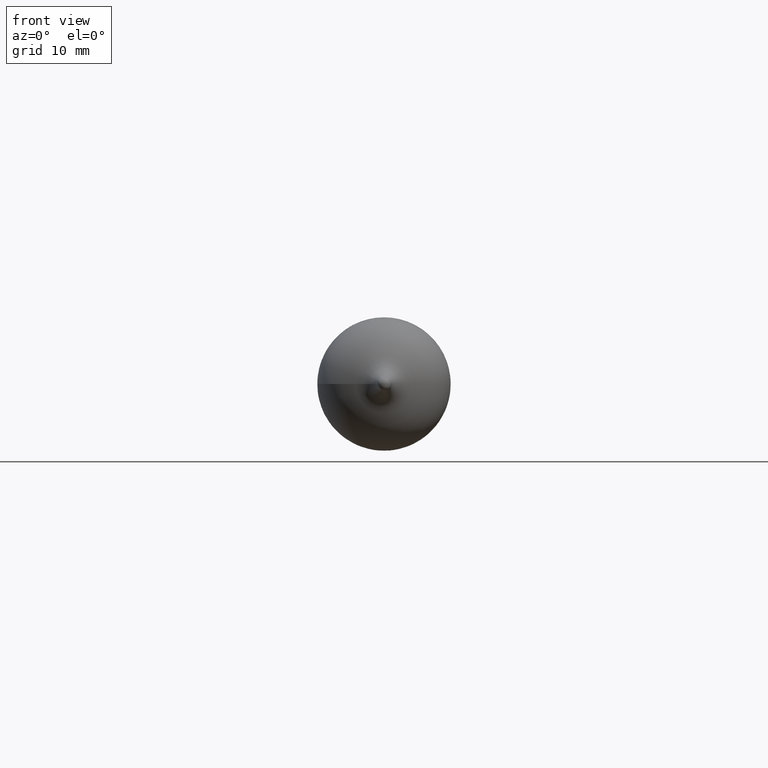
[diagram: clean part render]
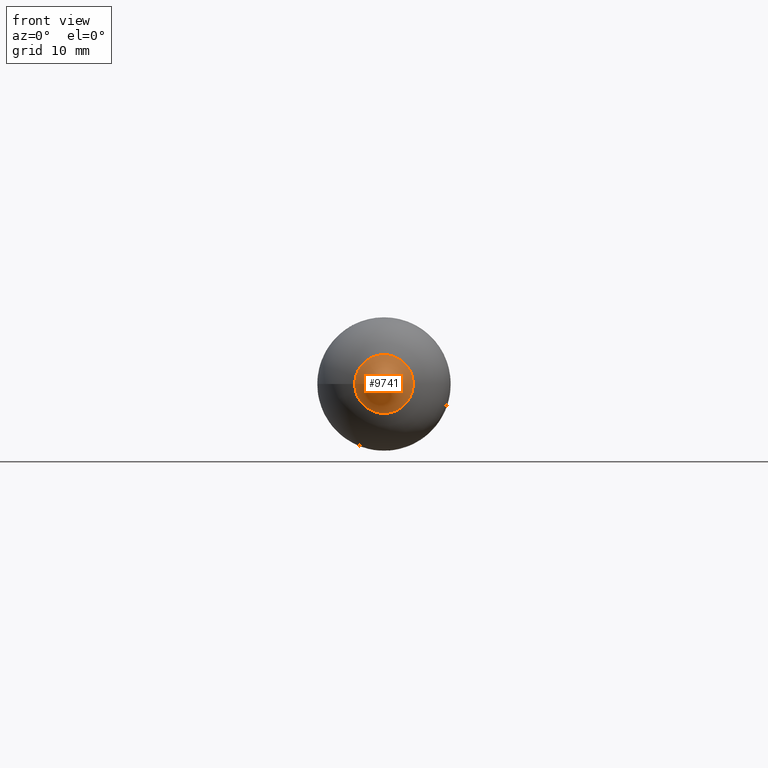
[diagram: same view with one face highlighted and labeled with its STEP entity id]
A machine part, front view. The second image highlights one B-rep face of the part: STEP entity #9741.
In plain terms, the highlighted toroidal blend (fillet) surface has major radius 6 mm and minor (blend) radius 5 mm.
Its self-contained STEP definition (entity closure, byte-faithful):
#153 = CARTESIAN_POINT ( 'NONE',  ( -2.964060388444780266E-15, -51.00000000000000711, 0.000000000000000000 ) ) ;
#163 = DIRECTION ( 'NONE',  ( 5.811883114597608921E-17, 1.000000000000000000, -0.000000000000000000 ) ) ;
#389 = ORIENTED_EDGE ( 'NONE', *, *, #4672, .T. ) ;
#867 = FACE_OUTER_BOUND ( 'NONE', #3092, .T. ) ;
#1099 = DIRECTION ( 'NONE',  ( 5.811883114597608921E-17, 1.000000000000000000, -0.000000000000000000 ) ) ;
#1866 = DIRECTION ( 'NONE',  ( -1.000000000000000000, 5.811883114597608921E-17, 0.000000000000000000 ) ) ;
#2022 = CARTESIAN_POINT ( 'NONE',  ( -2.688614116895631737E-15, -46.26063642165625822, 0.000000000000000000 ) ) ;
#3092 = EDGE_LOOP ( 'NONE', ( #389 ) ) ;
#3603 = FACE_OUTER_BOUND ( 'NONE', #8945, .T. ) ;
#3617 = VERTEX_POINT ( 'NONE', #5719 ) ;
#3837 = CARTESIAN_POINT ( 'NONE',  ( -2.602085213965210642E-15, -50.99999999999999289, 0.000000000000000000 ) ) ;
#3891 = CARTESIAN_POINT ( 'NONE',  ( -1.000000000000007327, -51.00000000000000711, 0.000000000000000000 ) ) ;
#4331 = VERTEX_POINT ( 'NONE', #3891 ) ;
#4367 = AXIS2_PLACEMENT_3D ( 'NONE', #2022, #163, #11178 ) ;
#4672 = EDGE_CURVE ( 'NONE', #4331, #4331, #9838, .T. ) ;
#4869 = DIRECTION ( 'NONE',  ( 5.811883114597608921E-17, 1.000000000000000000, -0.000000000000000000 ) ) ;
#5602 = AXIS2_PLACEMENT_3D ( 'NONE', #153, #4869, #10363 ) ;
#5719 = CARTESIAN_POINT ( 'NONE',  ( -4.406753982503356148, -46.26063642165625822, 0.000000000000000000 ) ) ;
#6290 = ORIENTED_EDGE ( 'NONE', *, *, #9840, .F. ) ;
#7623 = TOROIDAL_SURFACE ( 'NONE', #9941, 6.000000000000003553, 5.000000000000000888 ) ;
#8199 = CIRCLE ( 'NONE', #4367, 4.406753982503353484 ) ;
#8945 = EDGE_LOOP ( 'NONE', ( #6290 ) ) ;
#9741 = ADVANCED_FACE ( 'NONE', ( #3603, #867 ), #7623, .F. ) ;
#9838 = CIRCLE ( 'NONE', #5602, 1.000000000000004441 ) ;
#9840 = EDGE_CURVE ( 'NONE', #3617, #3617, #8199, .T. ) ;
#9941 = AXIS2_PLACEMENT_3D ( 'NONE', #3837, #1099, #1866 ) ;
#10363 = DIRECTION ( 'NONE',  ( -1.000000000000000000, 0.000000000000000000, 0.000000000000000000 ) ) ;
#11178 = DIRECTION ( 'NONE',  ( -1.000000000000000000, 0.000000000000000000, 0.000000000000000000 ) ) ;